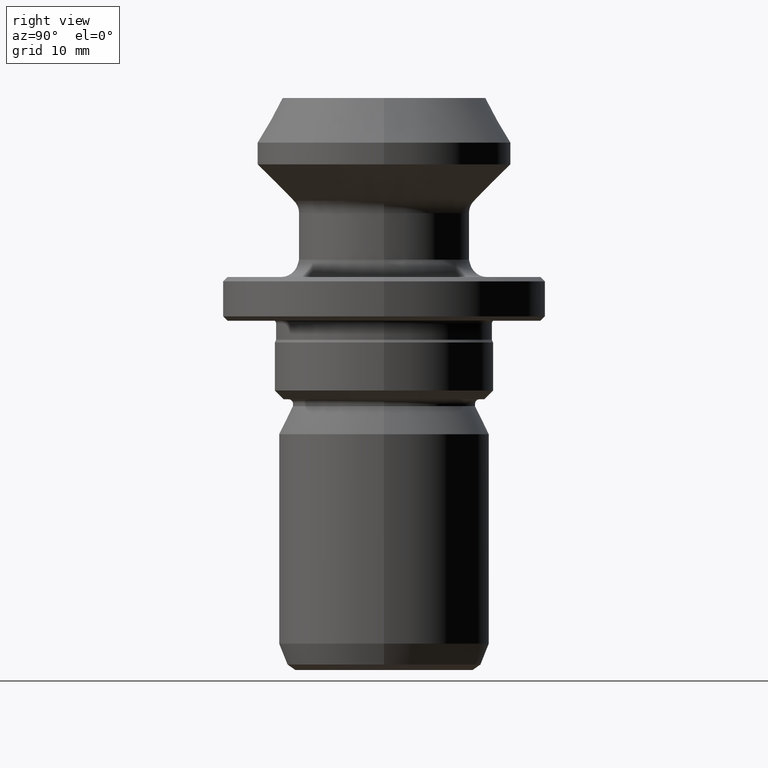
[diagram: clean part render]
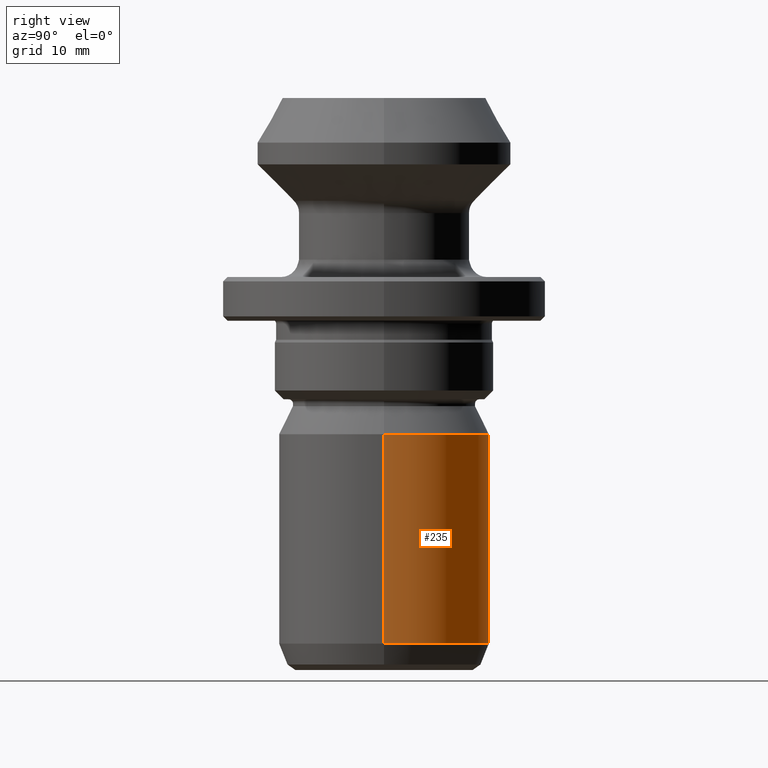
[diagram: same view with one face highlighted and labeled with its STEP entity id]
A machine part, right view. The second image highlights one B-rep face of the part: STEP entity #235.
In plain terms, the highlighted cylindrical surface (partial cylindrical patch) has radius 12 mm, axis along (-0, -0, 1).
Its self-contained STEP definition (entity closure, byte-faithful):
#117 = VERTEX_POINT ( 'NONE', #722 ) ;
#121 = CARTESIAN_POINT ( 'NONE',  ( 0.0000000000000000000, 0.0000000000000000000, 0.0000000000000000000 ) ) ;
#122 = VECTOR ( 'NONE', #666, 1000.000000000000000 ) ;
#127 = CARTESIAN_POINT ( 'NONE',  ( -12.00000000000000000, 1.469576158976823900E-015, 0.0000000000000000000 ) ) ;
#182 = CIRCLE ( 'NONE', #390, 12.00000000000000000 ) ;
#213 = DIRECTION ( 'NONE',  ( 1.000000000000000000, 0.0000000000000000000, 0.0000000000000000000 ) ) ;
#235 = ADVANCED_FACE ( 'NONE', ( #442 ), #942, .T. ) ;
#275 = ORIENTED_EDGE ( 'NONE', *, *, #895, .T. ) ;
#281 = DIRECTION ( 'NONE',  ( -0.0000000000000000000, -0.0000000000000000000, 1.000000000000000000 ) ) ;
#290 = DIRECTION ( 'NONE',  ( -0.0000000000000000000, -0.0000000000000000000, 1.000000000000000000 ) ) ;
#320 = CARTESIAN_POINT ( 'NONE',  ( 12.00000000000000000, 0.0000000000000000000, -38.50000000000000700 ) ) ;
#329 = LINE ( 'NONE', #966, #363 ) ;
#356 = ORIENTED_EDGE ( 'NONE', *, *, #908, .F. ) ;
#363 = VECTOR ( 'NONE', #281, 1000.000000000000000 ) ;
#390 = AXIS2_PLACEMENT_3D ( 'NONE', #713, #872, #857 ) ;
#442 = FACE_OUTER_BOUND ( 'NONE', #466, .T. ) ;
#466 = EDGE_LOOP ( 'NONE', ( #479, #275, #472, #356 ) ) ;
#472 = ORIENTED_EDGE ( 'NONE', *, *, #858, .F. ) ;
#479 = ORIENTED_EDGE ( 'NONE', *, *, #892, .T. ) ;
#486 = VERTEX_POINT ( 'NONE', #1004 ) ;
#515 = VERTEX_POINT ( 'NONE', #320 ) ;
#644 = AXIS2_PLACEMENT_3D ( 'NONE', #121, #290, #213 ) ;
#653 = AXIS2_PLACEMENT_3D ( 'NONE', #1112, #911, #805 ) ;
#660 = CIRCLE ( 'NONE', #653, 12.00000000000000000 ) ;
#666 = DIRECTION ( 'NONE',  ( -0.0000000000000000000, -0.0000000000000000000, 1.000000000000000000 ) ) ;
#713 = CARTESIAN_POINT ( 'NONE',  ( 0.0000000000000000000, 0.0000000000000000000, -62.47777483859992000 ) ) ;
#722 = CARTESIAN_POINT ( 'NONE',  ( -12.00000000000000000, 1.469576158976823900E-015, -38.50000000000000700 ) ) ;
#805 = DIRECTION ( 'NONE',  ( 1.000000000000000000, 0.0000000000000000000, 0.0000000000000000000 ) ) ;
#844 = VERTEX_POINT ( 'NONE', #1213 ) ;
#857 = DIRECTION ( 'NONE',  ( 1.000000000000000000, 0.0000000000000000000, 0.0000000000000000000 ) ) ;
#858 = EDGE_CURVE ( 'NONE', #515, #117, #660, .T. ) ;
#871 = LINE ( 'NONE', #127, #122 ) ;
#872 = DIRECTION ( 'NONE',  ( -0.0000000000000000000, -0.0000000000000000000, 1.000000000000000000 ) ) ;
#892 = EDGE_CURVE ( 'NONE', #844, #486, #182, .T. ) ;
#895 = EDGE_CURVE ( 'NONE', #486, #117, #871, .T. ) ;
#908 = EDGE_CURVE ( 'NONE', #844, #515, #329, .T. ) ;
#911 = DIRECTION ( 'NONE',  ( -0.0000000000000000000, -0.0000000000000000000, 1.000000000000000000 ) ) ;
#942 = CYLINDRICAL_SURFACE ( 'NONE', #644, 12.00000000000000000 ) ;
#966 = CARTESIAN_POINT ( 'NONE',  ( 12.00000000000000000, 0.0000000000000000000, 0.0000000000000000000 ) ) ;
#1004 = CARTESIAN_POINT ( 'NONE',  ( -12.00000000000000000, 1.469576158976823900E-015, -62.47777483859992000 ) ) ;
#1112 = CARTESIAN_POINT ( 'NONE',  ( 0.0000000000000000000, 0.0000000000000000000, -38.50000000000000700 ) ) ;
#1213 = CARTESIAN_POINT ( 'NONE',  ( 12.00000000000000000, 0.0000000000000000000, -62.47777483859992000 ) ) ;